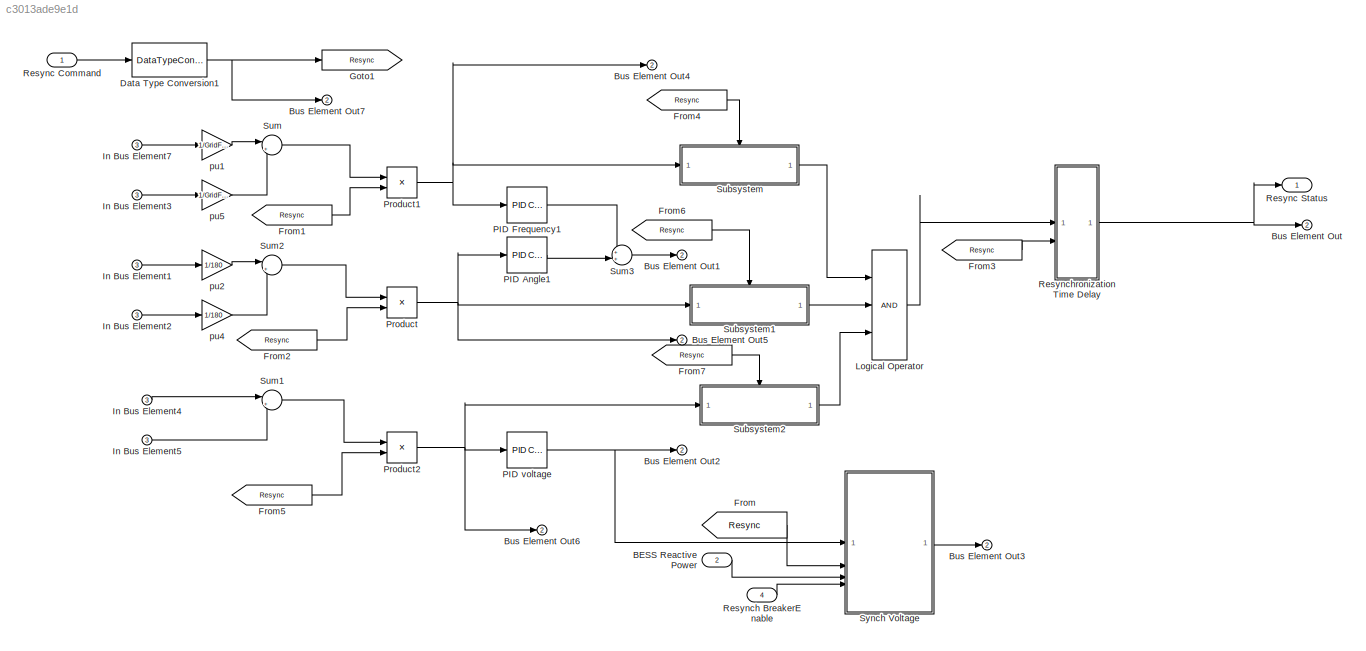
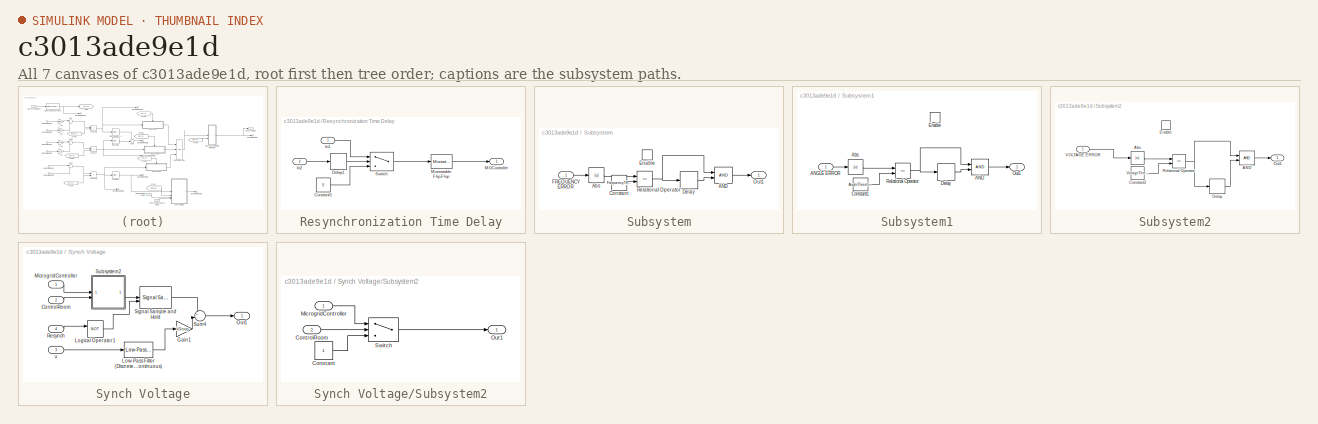
[diagram: thumbnail index - all 7 canvases of the model, root first then tree order]
MODEL slx_c3013ade9e1d
KIND model
CONFIG AbsTol = auto
CONFIG EnableMultiTasking = off
CONFIG FixedStep = Ts
CONFIG MaxStep = auto
CONFIG MinStep = auto
CONFIG RelTol = 1e-3
CONFIG SampleTimeConstraint = Unconstrained
CONFIG SolverName = FixedStepAuto
CONFIG StartTime = 0.0
CONFIG StopTime = 10.0
WORKSPACE source: mxarray member
WORKSPACE AngleThreshold = 1
WORKSPACE FrequencyThreshold = 1
WORKSPACE GridFrequency = 60
WORKSPACE KiAngResynch = 1
WORKSPACE KiFreResynch = 1
WORKSPACE KiVolResynch = 1
WORKSPACE KpAngResynch = 1
WORKSPACE KpFreResynch = 1
WORKSPACE KpVolResynch = 1
WORKSPACE ResynchDelay = 1
WORKSPACE Ts = 0.001
WORKSPACE VoltageThreshold = 1
WORKSPACE kDroop = 0
BLOCK [Inport] BESS Reactive Power
  Port = 2
BLOCK [Outport] Bus Element Out
  Port = 2
BLOCK [Outport] Bus Element Out1
  Port = 2
BLOCK [Outport] Bus Element Out2
  Port = 2
BLOCK [Outport] Bus Element Out3
  Port = 2
BLOCK [Outport] Bus Element Out4
  Port = 2
BLOCK [Outport] Bus Element Out5
  Port = 2
BLOCK [Outport] Bus Element Out6
  Port = 2
BLOCK [Outport] Bus Element Out7
  Port = 2
BLOCK [DataTypeConversion] Data Type Conversion1
  OutDataTypeStr = double
  RndMeth = Floor
  SaturateOnIntegerOverflow = off
BLOCK [From] From
  GotoTag = Resync
BLOCK [From] From1
  GotoTag = Resync
BLOCK [From] From2
  GotoTag = Resync
BLOCK [From] From3
  GotoTag = Resync
BLOCK [From] From4
  GotoTag = Resync
BLOCK [From] From5
  GotoTag = Resync
BLOCK [From] From6
  GotoTag = Resync
BLOCK [From] From7
  GotoTag = Resync
BLOCK [Goto] Goto1
  GotoTag = Resync
BLOCK [Inport] In Bus Element1
  Port = 3
BLOCK [Inport] In Bus Element2
  Port = 3
BLOCK [Inport] In Bus Element3
  Port = 3
BLOCK [Inport] In Bus Element4
  Port = 3
BLOCK [Inport] In Bus Element5
  Port = 3
BLOCK [Inport] In Bus Element7
  Port = 3
BLOCK [Logic] Logical Operator
  AllPortsSameDT = off
  Inputs = 3
  OutDataTypeStr = boolean
BLOCK [Reference] PID Angle1  REF=slpidlib/PID Controller
  SourceBlock = slpidlib/PID Controller
  SourceType = PID 1dof
BLOCK [Reference] PID Frequency1  REF=slpidlib/PID Controller
  SourceBlock = slpidlib/PID Controller
  SourceType = PID 1dof
BLOCK [Reference] PID voltage  REF=slpidlib/PID Controller
  SourceBlock = slpidlib/PID Controller
  SourceType = PID 1dof
BLOCK [Product] Product
BLOCK [Product] Product1
BLOCK [Product] Product2
BLOCK [Inport] Resync Command
  OutDataTypeStr = boolean
BLOCK [Outport] Resync Status
BLOCK [Inport] Resynch BreakerEnable
  Port = 4
BLOCK [SubSystem] Resynchronization Time Delay
BLOCK [Constant] Resynchronization Time Delay/Constant3
  Value = 0
BLOCK [Delay] Resynchronization Time Delay/Delay1
  DelayLength = 100
  InputPortMap = u0
  SampleTime = Ts
BLOCK [Inport] Resynchronization Time Delay/In1
BLOCK [Inport] Resynchronization Time Delay/In2
  Port = 2
BLOCK [Outport] Resynchronization Time Delay/MGController
BLOCK [Reference] Resynchronization Time Delay/Monostable Flip-Flop  REF=eeGeneralControl/Monostable Flip-Flop
  LibrarySourceBlock = ee_sl_lib/General Control/Monostable Flip-Flop
  SourceBlock = eeGeneralControl/Monostable Flip-Flop
  SourceType = Monostable Flip-Flop
BLOCK [Switch] Resynchronization Time Delay/Switch
  Criteria = u2 > Threshold
  InputSameDT = off
  SaturateOnIntegerOverflow = off
  Threshold = 0.5
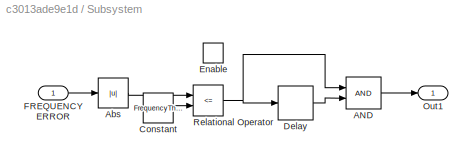
BLOCK [SubSystem] Subsystem
BLOCK [Logic] Subsystem/AND
  AllPortsSameDT = off
  IconShape = distinctive
  OutDataTypeStr = boolean
BLOCK [Abs] Subsystem/Abs
  SaturateOnIntegerOverflow = off
BLOCK [Constant] Subsystem/Constant
  SampleTime = -1
  Value = FrequencyThreshold
BLOCK [Delay] Subsystem/Delay
  DelayLength = 1000
  InputPortMap = u0
  SampleTime = Ts
BLOCK [EnablePort] Subsystem/Enable
BLOCK [Inport] Subsystem/FREQUENCY ERROR
BLOCK [Outport] Subsystem/Out1
BLOCK [RelationalOperator] Subsystem/Relational Operator
  InputSameDT = off
  Operator = <=
  OutDataTypeStr = boolean
  RndMeth = Simplest
BLOCK [SubSystem] Subsystem1
BLOCK [Logic] Subsystem1/AND
  AllPortsSameDT = off
  IconShape = distinctive
  OutDataTypeStr = boolean
BLOCK [Inport] Subsystem1/ANGLE ERROR
BLOCK [Abs] Subsystem1/Abs
  SaturateOnIntegerOverflow = off
BLOCK [Constant] Subsystem1/Constant1
  Value = AngleThreshold
BLOCK [Delay] Subsystem1/Delay
  DelayLength = 1000
  InputPortMap = u0
  SampleTime = Ts
BLOCK [EnablePort] Subsystem1/Enable
BLOCK [Outport] Subsystem1/Out1
BLOCK [RelationalOperator] Subsystem1/Relational Operator
  InputSameDT = off
  Operator = <=
  OutDataTypeStr = boolean
  RndMeth = Simplest
BLOCK [SubSystem] Subsystem2
BLOCK [Logic] Subsystem2/AND
  AllPortsSameDT = off
  IconShape = distinctive
  OutDataTypeStr = boolean
BLOCK [Abs] Subsystem2/Abs
  SaturateOnIntegerOverflow = off
BLOCK [Constant] Subsystem2/Constant2
  Value = VoltageThreshold
BLOCK [Delay] Subsystem2/Delay
  DelayLength = 1000
  InputPortMap = u0
  SampleTime = Ts
BLOCK [EnablePort] Subsystem2/Enable
BLOCK [Outport] Subsystem2/Out1
BLOCK [RelationalOperator] Subsystem2/Relational Operator
  InputSameDT = off
  Operator = <=
  OutDataTypeStr = boolean
  RndMeth = Simplest
BLOCK [Inport] Subsystem2/VOLTAGE ERROR
BLOCK [Sum] Sum
  Inputs = |+-
BLOCK [Sum] Sum1
  Inputs = |+-
BLOCK [Sum] Sum2
  Inputs = |+-
BLOCK [Sum] Sum3
  Inputs = ++|
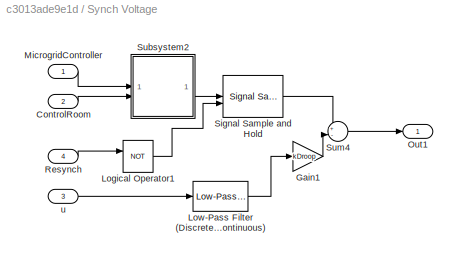
BLOCK [SubSystem] Synch Voltage
BLOCK [Inport] Synch Voltage/ControlRoom
  Port = 2
BLOCK [Gain] Synch Voltage/Gain1
  Gain = kDroop
BLOCK [Logic] Synch Voltage/Logical Operator1
  AllPortsSameDT = off
  Operator = NOT
  OutDataTypeStr = boolean
BLOCK [Reference] Synch Voltage/Low-Pass Filter (Discrete or Continuous)  REF=eeGeneralControl/Low-Pass Filter
(Discrete or Continuous)
  SourceBlock = eeGeneralControl/Low-Pass Filter\n(Discrete or Continuous)
  SourceType = Low-Pass Filter (Discrete or Continuous)
BLOCK [Inport] Synch Voltage/MicrogridController
BLOCK [Outport] Synch Voltage/Out1
BLOCK [Inport] Synch Voltage/Resynch
  Port = 4
BLOCK [Reference] Synch Voltage/Signal Sample and Hold  REF=eeGeneralControl/Signal Sample and Hold
  LibrarySourceBlock = ee_sl_lib/General Control/Signal Sample and Hold
  SourceBlock = eeGeneralControl/Signal Sample and Hold
  SourceType = Signal Sample-and-Hold
BLOCK [SubSystem] Synch Voltage/Subsystem2
BLOCK [Constant] Synch Voltage/Subsystem2/Constant
BLOCK [Inport] Synch Voltage/Subsystem2/ControlRoom
  Port = 2
BLOCK [Inport] Synch Voltage/Subsystem2/MicrogridController
BLOCK [Outport] Synch Voltage/Subsystem2/Out1
BLOCK [Switch] Synch Voltage/Subsystem2/Switch
  Criteria = u2 > Threshold
  InputSameDT = off
  SaturateOnIntegerOverflow = off
  Threshold = 0.5
BLOCK [Sum] Synch Voltage/Sum4
  Inputs = +-
BLOCK [Inport] Synch Voltage/u
  Port = 3
BLOCK [Gain] pu1
  Gain = 1/GridFrequency
BLOCK [Gain] pu2
  Gain = 1/180
BLOCK [Gain] pu4
  Gain = 1/180
  NameLocation = top
BLOCK [Gain] pu5
  Gain = 1/GridFrequency
LINE BESS Reactive Power:1 -> Synch Voltage:3
NET Data Type Conversion1:1 -> Bus Element Out7:1, Goto1:1
LINE From1:1 -> Product1:2
LINE From2:1 -> Product:2
LINE From3:1 -> Resynchronization Time Delay:2
LINE From4:1 -> Subsystem:enable
LINE From5:1 -> Product2:2
LINE From6:1 -> Subsystem1:enable
LINE From7:1 -> Subsystem2:enable
LINE From:1 -> Synch Voltage:2
LINE In Bus Element1:1 -> pu2:1
LINE In Bus Element2:1 -> pu4:1
LINE In Bus Element3:1 -> pu5:1
LINE In Bus Element4:1 -> Sum1:1
LINE In Bus Element5:1 -> Sum1:2
LINE In Bus Element7:1 -> pu1:1
LINE Logical Operator:1 -> Resynchronization Time Delay:1
LINE PID Angle1:1 -> Sum3:2
LINE PID Frequency1:1 -> Sum3:1
NET PID voltage:1 -> Bus Element Out2:1, Synch Voltage:1
NET Product1:1 -> Bus Element Out4:1, PID Frequency1:1, Subsystem:1
NET Product2:1 -> Bus Element Out6:1, PID voltage:1, Subsystem2:1
NET Product:1 -> Bus Element Out5:1, PID Angle1:1, Subsystem1:1
LINE Resync Command:1 -> Data Type Conversion1:1
LINE Resynch BreakerEnable:1 -> Synch Voltage:4
LINE Resynchronization Time Delay/Constant3:1 -> Resynchronization Time Delay/Switch:3
LINE Resynchronization Time Delay/Delay1:1 -> Resynchronization Time Delay/Switch:2
LINE Resynchronization Time Delay/In1:1 -> Resynchronization Time Delay/Switch:1
LINE Resynchronization Time Delay/In2:1 -> Resynchronization Time Delay/Delay1:1
LINE Resynchronization Time Delay/Monostable Flip-Flop:1 -> Resynchronization Time Delay/MGController:1
LINE Resynchronization Time Delay/Switch:1 -> Resynchronization Time Delay/Monostable Flip-Flop:1
NET Resynchronization Time Delay:1 -> Bus Element Out:1, Resync Status:1
LINE Subsystem/AND:1 -> Subsystem/Out1:1
LINE Subsystem/Abs:1 -> Subsystem/Relational Operator:1
LINE Subsystem/Constant:1 -> Subsystem/Relational Operator:2
LINE Subsystem/Delay:1 -> Subsystem/AND:2
LINE Subsystem/FREQUENCY ERROR:1 -> Subsystem/Abs:1
NET Subsystem/Relational Operator:1 -> Subsystem/AND:1, Subsystem/Delay:1
LINE Subsystem1/AND:1 -> Subsystem1/Out1:1
LINE Subsystem1/ANGLE ERROR:1 -> Subsystem1/Abs:1
LINE Subsystem1/Abs:1 -> Subsystem1/Relational Operator:1
LINE Subsystem1/Constant1:1 -> Subsystem1/Relational Operator:2
LINE Subsystem1/Delay:1 -> Subsystem1/AND:2
NET Subsystem1/Relational Operator:1 -> Subsystem1/AND:1, Subsystem1/Delay:1
LINE Subsystem1:1 -> Logical Operator:2
LINE Subsystem2/AND:1 -> Subsystem2/Out1:1
LINE Subsystem2/Abs:1 -> Subsystem2/Relational Operator:1
LINE Subsystem2/Constant2:1 -> Subsystem2/Relational Operator:2
LINE Subsystem2/Delay:1 -> Subsystem2/AND:2
NET Subsystem2/Relational Operator:1 -> Subsystem2/AND:1, Subsystem2/Delay:1
LINE Subsystem2/VOLTAGE ERROR:1 -> Subsystem2/Abs:1
LINE Subsystem2:1 -> Logical Operator:3
LINE Subsystem:1 -> Logical Operator:1
LINE Sum1:1 -> Product2:1
LINE Sum2:1 -> Product:1
LINE Sum3:1 -> Bus Element Out1:1
LINE Sum:1 -> Product1:1
LINE Synch Voltage/ControlRoom:1 -> Synch Voltage/Subsystem2:2
LINE Synch Voltage/Gain1:1 -> Synch Voltage/Sum4:2
LINE Synch Voltage/Logical Operator1:1 -> Synch Voltage/Signal Sample and Hold:2
LINE Synch Voltage/Low-Pass Filter (Discrete or Continuous):1 -> Synch Voltage/Gain1:1
LINE Synch Voltage/MicrogridController:1 -> Synch Voltage/Subsystem2:1
LINE Synch Voltage/Resynch:1 -> Synch Voltage/Logical Operator1:1
LINE Synch Voltage/Signal Sample and Hold:1 -> Synch Voltage/Sum4:1
LINE Synch Voltage/Subsystem2/Constant:1 -> Synch Voltage/Subsystem2/Switch:3
LINE Synch Voltage/Subsystem2/ControlRoom:1 -> Synch Voltage/Subsystem2/Switch:2
LINE Synch Voltage/Subsystem2/MicrogridController:1 -> Synch Voltage/Subsystem2/Switch:1
LINE Synch Voltage/Subsystem2/Switch:1 -> Synch Voltage/Subsystem2/Out1:1
LINE Synch Voltage/Subsystem2:1 -> Synch Voltage/Signal Sample and Hold:1
LINE Synch Voltage/Sum4:1 -> Synch Voltage/Out1:1
LINE Synch Voltage/u:1 -> Synch Voltage/Low-Pass Filter (Discrete or Continuous):1
LINE Synch Voltage:1 -> Bus Element Out3:1
LINE pu1:1 -> Sum:1
LINE pu2:1 -> Sum2:1
LINE pu4:1 -> Sum2:2
LINE pu5:1 -> Sum:2
note: NET lines group one-source signal fan-out (src -> all destinations, sorted); 1:1 wires keep LINE
